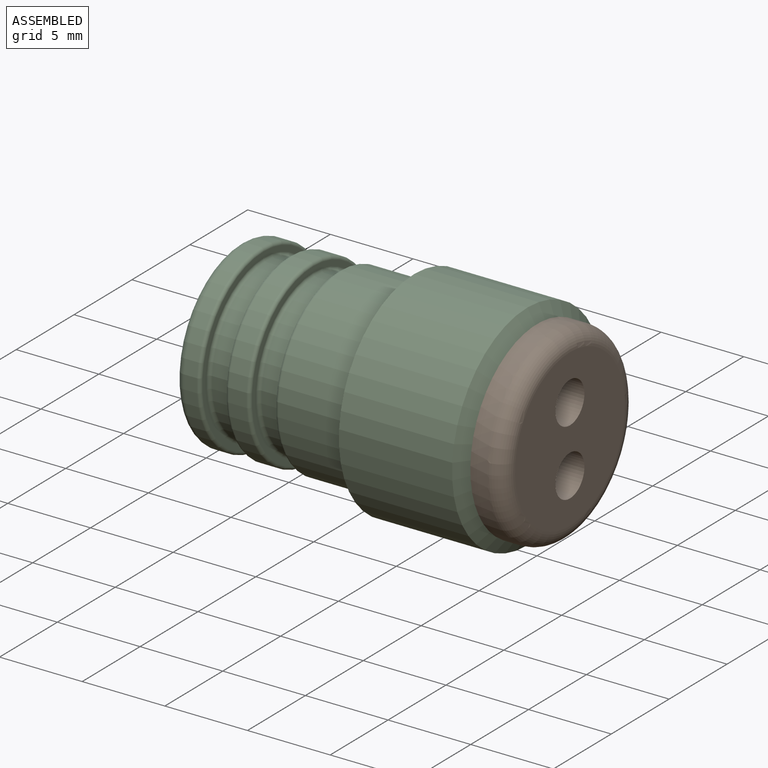
[diagram: assembled view]
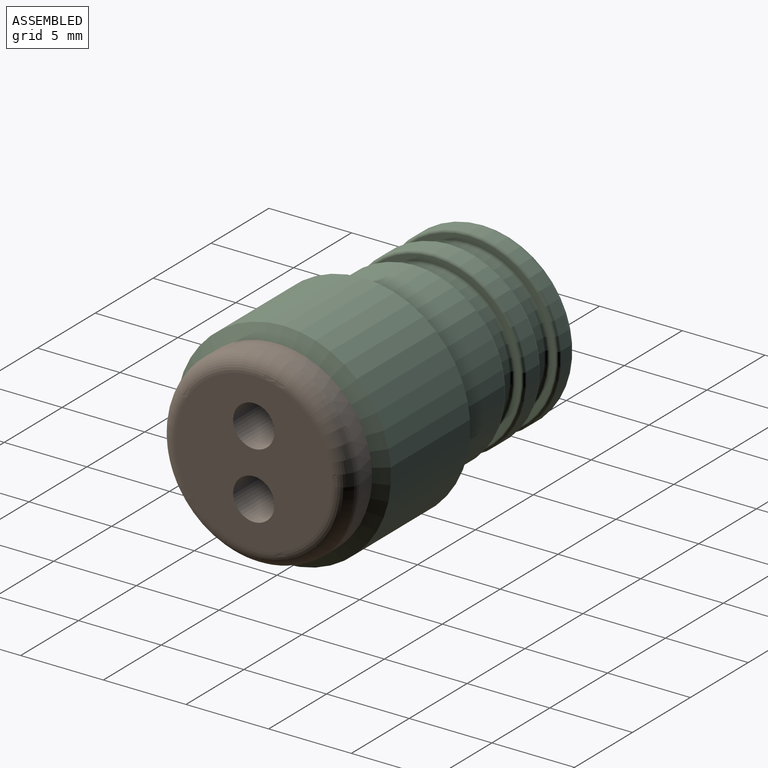
[diagram: assembled view, second angle]
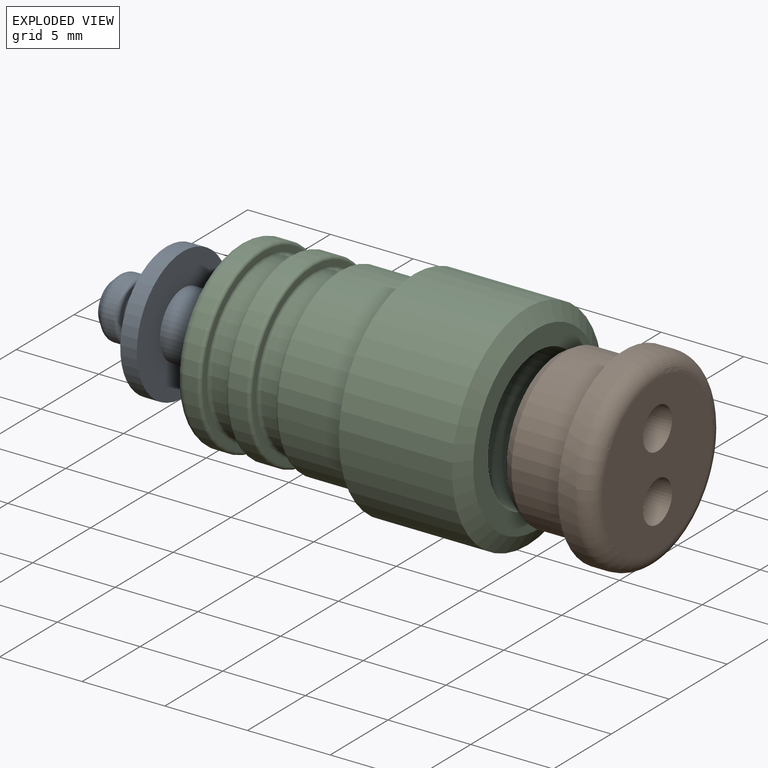
[diagram: exploded view]
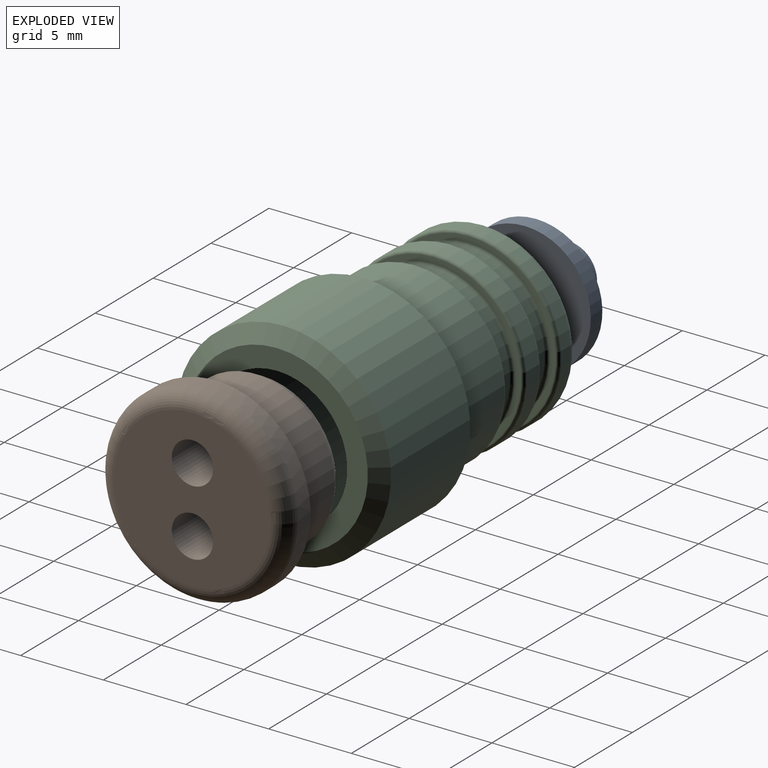
[diagram: exploded view, second angle]
ASSEMBLY  parts=3 mates=2
PART A: 13 faces, bbox 6.9x8x8 mm
  f0: plane 4x4mm, normal (1,0,0), area 12.6mm2, adj f1
  f1: cylinder r=2mm len=4mm, axis (-1,0,0), area 31.4mm2, adj f0,f2
  f2: plane 8x8mm, normal (1,0,0), area 37.7mm2, adj f1,f3
  f3: cylinder r=4mm len=8mm, axis (-1,0,0), area 25.1mm2, adj f2,f4
  f4: plane 8x8mm, normal (-1,0,0), area 44.8mm2, adj f3,f5
  f5: cylinder r=1.32mm len=2.65mm, axis (-1,0,0), area 14.2mm2, adj f4,f6
  f6: plane 3.25x3.25mm, normal (1,0,0), area 2.8mm2, adj f5,f7
  f7: torus R=1.62mm, axis (-1,0,0), area 3.5mm2, adj f6,f8
  f8: cylinder r=1.82mm len=3.65mm, axis (-1,0,0), area 6.8mm2, adj f7,f9
  f9: torus R=1.32mm, axis (-1,0,0), area 4.4mm2, adj f8,f10
  f10: cone r=1.68mm half-angle=45deg, axis (1,0,0), area 4.8mm2, adj f9,f11
  f11: torus R=0.97mm, axis (-1,0,0), area 2.8mm2, adj f10,f12
  f12: plane 1.94x1.94mm, normal (-1,0,0), area 2.9mm2, adj f11
PART B: 9 faces, bbox 6x12.4x12.4 mm
  f0: plane 8.95x8.95mm, normal (-1,0,0), area 53.1mm2, adj f6,f7,f8
  f1: plane 9.5x9.5mm, normal (1,0,0), area 61.1mm2, adj f5,f7,f8
  f2: cylinder r=5.75mm len=11.5mm, axis (1,0,0), area 36.1mm2, adj f3,f5
  f3: plane 11.5x11.5mm, normal (-1,0,0), area 32.6mm2, adj f2,f4
  f4: cylinder r=4.76mm len=9.53mm, axis (1,0,0), area 104.7mm2, adj f3,f6
  f5: torus R=4.75mm, axis (-1,0,0), area 53.2mm2, adj f1,f2
  f6: cone r=4.76mm half-angle=30deg, axis (1,0,0), area 16.8mm2, adj f0,f4
  f7: cylinder r=1.25mm len=6mm, axis (-1,0,0), area 47.1mm2, adj f0,f1
  f8: cylinder r=1.25mm len=6mm, axis (-1,0,0), area 47.1mm2, adj f0,f1
PART C: 28 faces, bbox 18x13x13 mm
  f0: plane 10x10mm, normal (-1,0,0), area 55.6mm2, adj f25,f26
  f1: cylinder r=2.2mm len=4.4mm, axis (1,0,0), area 11.7mm2, adj f2,f25
  f2: cone r=2.2mm half-angle=45deg, axis (1,0,0), area 28.4mm2, adj f1,f3
  f3: plane 8.5x8.5mm, normal (1,0,0), area 21.5mm2, adj f2,f4
  f4: cylinder r=4.25mm len=15.5mm, axis (1,0,0), area 413.9mm2, adj f3,f5
  f5: plane 11x11mm, normal (1,0,0), area 38.3mm2, adj f4,f27
  f6: cylinder r=6.5mm len=13mm, axis (1,0,0), area 279.6mm2, adj f7,f27
  f7: cone r=6.5mm half-angle=60deg, axis (1,0,0), area 43.5mm2, adj f6,f8
  f8: cylinder r=5.5mm len=11mm, axis (1,0,0), area 131.3mm2, adj f7,f17
  f9: plane 10.6x10.6mm, normal (-1,0,0), area 11.3mm2, adj f17,f18
  f10: cylinder r=4.75mm len=9.5mm, axis (1,0,0), area 33.4mm2, adj f18,f19
  f11: plane 10.6x10.6mm, normal (1,0,0), area 11.3mm2, adj f19,f20
  f12: cylinder r=5.5mm len=11mm, axis (1,0,0), area 37.3mm2, adj f20,f21
  f13: plane 10.6x10.6mm, normal (-1,0,0), area 11.3mm2, adj f21,f22
  f14: cylinder r=4.75mm len=9.5mm, axis (1,0,0), area 33.4mm2, adj f22,f23
  f15: plane 10.6x10.6mm, normal (1,0,0), area 11.3mm2, adj f23,f24
  f16: cylinder r=5.5mm len=11mm, axis (1,0,0), area 27mm2, adj f24,f26
  f17: torus R=5.3mm, axis (-1,0,0), area 10.7mm2, adj f8,f9
  f18: torus R=4.95mm, axis (-1,0,0), area 9.5mm2, adj f9,f10
  f19: torus R=4.95mm, axis (1,0,0), area 9.5mm2, adj f10,f11
  f20: torus R=5.3mm, axis (1,0,0), area 10.7mm2, adj f11,f12
  f21: torus R=5.3mm, axis (-1,0,0), area 10.7mm2, adj f12,f13
  f22: torus R=4.95mm, axis (-1,0,0), area 9.5mm2, adj f13,f14
  f23: torus R=4.95mm, axis (1,0,0), area 9.5mm2, adj f14,f15
  f24: torus R=5.3mm, axis (1,0,0), area 10.7mm2, adj f15,f16
  f25: torus R=2.7mm, axis (-1,0,0), area 11.8mm2, adj f0,f1
  f26: torus R=5mm, axis (-1,0,0), area 26.2mm2, adj f0,f16
  f27: cone r=5.5mm half-angle=60deg, axis (-1,0,0), area 43.5mm2, adj f5,f6
PLACE A t=(-12,0,0)mm
PLACE B t=(-4,0,0)mm
PLACE C at identity
MATE fastened B.f2 <-> C.f1  axis (-1,0,0) through (0,0,0)mm
MATE slider A.f1 <-> C.f1  axis (-1,0,0) through (-15.5,0,0)mm
